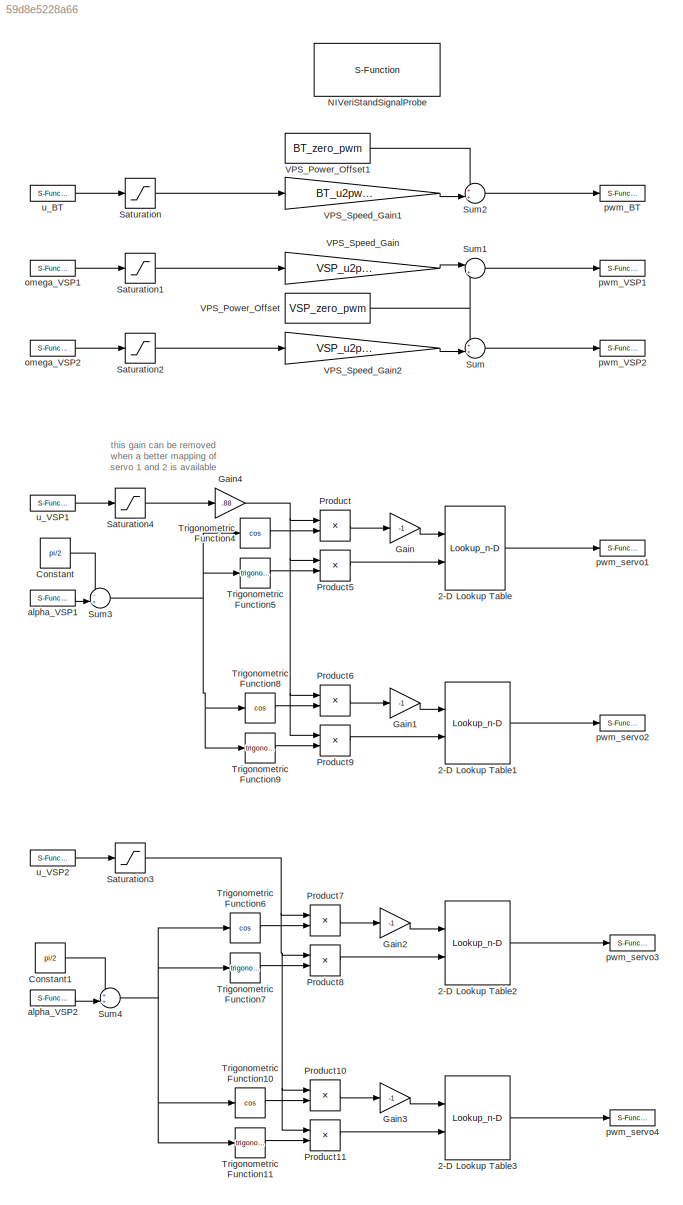
MODEL slx_59d8e5228a66
KIND model
BLOCK [Lookup_n-D] 2-D Lookup Table
  BreakpointsForDimension1 = [-1,-0.7071067811865476,0,0.7071067811865476,1]
  BreakpointsForDimension2 = [-1,-0.7071067811865476,0,0.7071067811865476,1]
  Ports = [2, 1]
  RndMeth = Simplest
  Table = servo_mapping(:,:,1)
BLOCK [Lookup_n-D] 2-D Lookup Table1
  BreakpointsForDimension1 = [-1,-0.7071067811865476,0,0.7071067811865476,1]
  BreakpointsForDimension2 = [-1,-0.7071067811865476,0,0.7071067811865476,1]
  Ports = [2, 1]
  RndMeth = Simplest
  Table = servo_mapping(:,:,2)
BLOCK [Lookup_n-D] 2-D Lookup Table2
  BreakpointsForDimension1 = [-1,-0.7071067811865476,0,0.7071067811865476,1]
  BreakpointsForDimension2 = [-1,-0.7071067811865476,0,0.7071067811865476,1]
  Ports = [2, 1]
  RndMeth = Simplest
  Table = servo_mapping(:,:,3)
BLOCK [Lookup_n-D] 2-D Lookup Table3
  BreakpointsForDimension1 = [-1,-0.7071067811865476,0,0.7071067811865476,1]
  BreakpointsForDimension2 = [-1,-0.7071067811865476,0,0.7071067811865476,1]
  Ports = [2, 1]
  RndMeth = Simplest
  Table = servo_mapping(:,:,4)
BLOCK [Constant] Constant
  Value = pi/2
BLOCK [Constant] Constant1
  Value = pi/2
BLOCK [Gain] Gain
  Gain = -1
  OutDataTypeStr = Inherit: Inherit via internal rule
  ParamDataTypeStr = Inherit: Inherit via internal rule
  SaturateOnIntegerOverflow = off
BLOCK [Gain] Gain1
  Gain = -1
  OutDataTypeStr = Inherit: Inherit via internal rule
  ParamDataTypeStr = Inherit: Inherit via internal rule
  SaturateOnIntegerOverflow = off
BLOCK [Gain] Gain2
  Gain = -1
  OutDataTypeStr = Inherit: Inherit via internal rule
  ParamDataTypeStr = Inherit: Inherit via internal rule
  SaturateOnIntegerOverflow = off
BLOCK [Gain] Gain3
  Gain = -1
  OutDataTypeStr = Inherit: Inherit via internal rule
  ParamDataTypeStr = Inherit: Inherit via internal rule
  SaturateOnIntegerOverflow = off
BLOCK [Gain] Gain4
  Gain = .88
  OutDataTypeStr = Inherit: Inherit via internal rule
  ParamDataTypeStr = Inherit: Inherit via internal rule
  SaturateOnIntegerOverflow = off
BLOCK [S-Function] NIVeriStandSignalProbe
  EnableBusSupport = off
  FunctionName = NIVeriStandSignalProbe
  Parameters = 1
  Ports = []
BLOCK [Product] Product
  InputSameDT = off
  OutDataTypeStr = Inherit: Inherit via internal rule
  Ports = [2, 1]
  RndMeth = Floor
  SaturateOnIntegerOverflow = off
BLOCK [Product] Product10
  InputSameDT = off
  OutDataTypeStr = Inherit: Inherit via internal rule
  Ports = [2, 1]
  RndMeth = Floor
  SaturateOnIntegerOverflow = off
BLOCK [Product] Product11
  InputSameDT = off
  OutDataTypeStr = Inherit: Inherit via internal rule
  Ports = [2, 1]
  RndMeth = Floor
  SaturateOnIntegerOverflow = off
BLOCK [Product] Product5
  InputSameDT = off
  OutDataTypeStr = Inherit: Inherit via internal rule
  Ports = [2, 1]
  RndMeth = Floor
  SaturateOnIntegerOverflow = off
BLOCK [Product] Product6
  InputSameDT = off
  OutDataTypeStr = Inherit: Inherit via internal rule
  Ports = [2, 1]
  RndMeth = Floor
  SaturateOnIntegerOverflow = off
BLOCK [Product] Product7
  InputSameDT = off
  OutDataTypeStr = Inherit: Inherit via internal rule
  Ports = [2, 1]
  RndMeth = Floor
  SaturateOnIntegerOverflow = off
BLOCK [Product] Product8
  InputSameDT = off
  OutDataTypeStr = Inherit: Inherit via internal rule
  Ports = [2, 1]
  RndMeth = Floor
  SaturateOnIntegerOverflow = off
BLOCK [Product] Product9
  InputSameDT = off
  OutDataTypeStr = Inherit: Inherit via internal rule
  Ports = [2, 1]
  RndMeth = Floor
  SaturateOnIntegerOverflow = off
BLOCK [Saturate] Saturation
  InputPortMap = u0
  LowerLimit = -1
  Ports = [1, 1]
  UpperLimit = 1
BLOCK [Saturate] Saturation1
  InputPortMap = u0
  LowerLimit = -1
  Ports = [1, 1]
  UpperLimit = 1
BLOCK [Saturate] Saturation2
  InputPortMap = u0
  LowerLimit = -1
  Ports = [1, 1]
  UpperLimit = 1
BLOCK [Saturate] Saturation3
  InputPortMap = u0
  LowerLimit = -1
  Ports = [1, 1]
  UpperLimit = 1
BLOCK [Saturate] Saturation4
  InputPortMap = u0
  LowerLimit = -1
  Ports = [1, 1]
  UpperLimit = 1
BLOCK [Sum] Sum
  IconShape = round
  InputSameDT = off
  Inputs = ++|
  OutDataTypeStr = Inherit: Inherit via internal rule
  Ports = [2, 1]
  SaturateOnIntegerOverflow = off
BLOCK [Sum] Sum1
  IconShape = round
  InputSameDT = off
  Inputs = |++
  OutDataTypeStr = Inherit: Inherit via internal rule
  Ports = [2, 1]
  SaturateOnIntegerOverflow = off
BLOCK [Sum] Sum2
  IconShape = round
  InputSameDT = off
  Inputs = ++|
  OutDataTypeStr = Inherit: Inherit via internal rule
  Ports = [2, 1]
  SaturateOnIntegerOverflow = off
BLOCK [Sum] Sum3
  IconShape = round
  InputSameDT = off
  Inputs = -+|
  OutDataTypeStr = Inherit: Inherit via internal rule
  Ports = [2, 1]
  SaturateOnIntegerOverflow = off
BLOCK [Sum] Sum4
  IconShape = round
  InputSameDT = off
  Inputs = ++|
  OutDataTypeStr = Inherit: Inherit via internal rule
  Ports = [2, 1]
  SaturateOnIntegerOverflow = off
BLOCK [Trigonometry] Trigonometric Function10
  Operator = cos
  Ports = [1, 1]
BLOCK [Trigonometry] Trigonometric Function11
  Ports = [1, 1]
BLOCK [Trigonometry] Trigonometric Function4
  Operator = cos
  Ports = [1, 1]
BLOCK [Trigonometry] Trigonometric Function5
  Ports = [1, 1]
BLOCK [Trigonometry] Trigonometric Function6
  Operator = cos
  Ports = [1, 1]
BLOCK [Trigonometry] Trigonometric Function7
  Ports = [1, 1]
BLOCK [Trigonometry] Trigonometric Function8
  Operator = cos
  Ports = [1, 1]
BLOCK [Trigonometry] Trigonometric Function9
  Ports = [1, 1]
BLOCK [Constant] VPS_Power_Offset
  Value = VSP_zero_pwm
BLOCK [Constant] VPS_Power_Offset1
  Value = BT_zero_pwm
BLOCK [Gain] VPS_Speed_Gain
  Gain = VSP_u2pwm_gain
  OutDataTypeStr = Inherit: Inherit via internal rule
  ParamDataTypeStr = Inherit: Inherit via internal rule
  SaturateOnIntegerOverflow = off
BLOCK [Gain] VPS_Speed_Gain1
  Gain = BT_u2pwm_gain
  OutDataTypeStr = Inherit: Inherit via internal rule
  ParamDataTypeStr = Inherit: Inherit via internal rule
  SaturateOnIntegerOverflow = off
BLOCK [Gain] VPS_Speed_Gain2
  Gain = VSP_u2pwm_gain
  OutDataTypeStr = Inherit: Inherit via internal rule
  ParamDataTypeStr = Inherit: Inherit via internal rule
  SaturateOnIntegerOverflow = off
BLOCK [S-Function] alpha_VSP1
  CopyFcn = NIVeriStand_MDL_functions('', 'IO_copy');
  DeleteFcn = NIVeriStand_MDL_functions('', 'IO_delete');
  EnableBusSupport = off
  FunctionName = NIVeriStandIO
  MoveFcn = set_param(gcb, 'Mask', 'on');
  Parameters = width dtype portnum stime stype btype
  Ports = [0, 1]
  Priority = 1
BLOCK [S-Function] alpha_VSP2
  CopyFcn = NIVeriStand_MDL_functions('', 'IO_copy');
  DeleteFcn = NIVeriStand_MDL_functions('', 'IO_delete');
  EnableBusSupport = off
  FunctionName = NIVeriStandIO
  MoveFcn = set_param(gcb, 'Mask', 'on');
  Parameters = width dtype portnum stime stype btype
  Ports = [0, 1]
  Priority = 3
BLOCK [S-Function] omega_VSP1
  CopyFcn = NIVeriStand_MDL_functions('', 'IO_copy');
  DeleteFcn = NIVeriStand_MDL_functions('', 'IO_delete');
  EnableBusSupport = off
  FunctionName = NIVeriStandIO
  MoveFcn = set_param(gcb, 'Mask', 'on');
  Parameters = width dtype portnum stime stype btype
  Ports = [0, 1]
  Priority = 6
BLOCK [S-Function] omega_VSP2
  CopyFcn = NIVeriStand_MDL_functions('', 'IO_copy');
  DeleteFcn = NIVeriStand_MDL_functions('', 'IO_delete');
  EnableBusSupport = off
  FunctionName = NIVeriStandIO
  MoveFcn = set_param(gcb, 'Mask', 'on');
  Parameters = width dtype portnum stime stype btype
  Ports = [0, 1]
  Priority = 7
BLOCK [S-Function] pwm_BT
  CopyFcn = NIVeriStand_MDL_functions('', 'IO_copy');
  DeleteFcn = NIVeriStand_MDL_functions('', 'IO_delete');
  EnableBusSupport = off
  FunctionName = NIVeriStandIO
  MoveFcn = set_param(gcb, 'Mask', 'on');
  Parameters = width dtype portnum stime stype btype
  Ports = [1]
  Priority = 3
BLOCK [S-Function] pwm_VSP1
  CopyFcn = NIVeriStand_MDL_functions('', 'IO_copy');
  DeleteFcn = NIVeriStand_MDL_functions('', 'IO_delete');
  EnableBusSupport = off
  FunctionName = NIVeriStandIO
  MoveFcn = set_param(gcb, 'Mask', 'on');
  Parameters = width dtype portnum stime stype btype
  Ports = [1]
  Priority = 1
BLOCK [S-Function] pwm_VSP2
  CopyFcn = NIVeriStand_MDL_functions('', 'IO_copy');
  DeleteFcn = NIVeriStand_MDL_functions('', 'IO_delete');
  EnableBusSupport = off
  FunctionName = NIVeriStandIO
  MoveFcn = set_param(gcb, 'Mask', 'on');
  Parameters = width dtype portnum stime stype btype
  Ports = [1]
  Priority = 2
BLOCK [S-Function] pwm_servo1
  CopyFcn = NIVeriStand_MDL_functions('', 'IO_copy');
  DeleteFcn = NIVeriStand_MDL_functions('', 'IO_delete');
  EnableBusSupport = off
  FunctionName = NIVeriStandIO
  MoveFcn = set_param(gcb, 'Mask', 'on');
  Parameters = width dtype portnum stime stype btype
  Ports = [1]
  Priority = 6
BLOCK [S-Function] pwm_servo2
  CopyFcn = NIVeriStand_MDL_functions('', 'IO_copy');
  DeleteFcn = NIVeriStand_MDL_functions('', 'IO_delete');
  EnableBusSupport = off
  FunctionName = NIVeriStandIO
  MoveFcn = set_param(gcb, 'Mask', 'on');
  Parameters = width dtype portnum stime stype btype
  Ports = [1]
  Priority = 7
BLOCK [S-Function] pwm_servo3
  CopyFcn = NIVeriStand_MDL_functions('', 'IO_copy');
  DeleteFcn = NIVeriStand_MDL_functions('', 'IO_delete');
  EnableBusSupport = off
  FunctionName = NIVeriStandIO
  MoveFcn = set_param(gcb, 'Mask', 'on');
  Parameters = width dtype portnum stime stype btype
  Ports = [1]
  Priority = 5
BLOCK [S-Function] pwm_servo4
  CopyFcn = NIVeriStand_MDL_functions('', 'IO_copy');
  DeleteFcn = NIVeriStand_MDL_functions('', 'IO_delete');
  EnableBusSupport = off
  FunctionName = NIVeriStandIO
  MoveFcn = set_param(gcb, 'Mask', 'on');
  Parameters = width dtype portnum stime stype btype
  Ports = [1]
  Priority = 4
BLOCK [S-Function] u_BT
  CopyFcn = NIVeriStand_MDL_functions('', 'IO_copy');
  DeleteFcn = NIVeriStand_MDL_functions('', 'IO_delete');
  EnableBusSupport = off
  FunctionName = NIVeriStandIO
  MoveFcn = set_param(gcb, 'Mask', 'on');
  Parameters = width dtype portnum stime stype btype
  Ports = [0, 1]
  Priority = 5
BLOCK [S-Function] u_VSP1
  CopyFcn = NIVeriStand_MDL_functions('', 'IO_copy');
  DeleteFcn = NIVeriStand_MDL_functions('', 'IO_delete');
  EnableBusSupport = off
  FunctionName = NIVeriStandIO
  MoveFcn = set_param(gcb, 'Mask', 'on');
  Parameters = width dtype portnum stime stype btype
  Ports = [0, 1]
  Priority = 2
BLOCK [S-Function] u_VSP2
  CopyFcn = NIVeriStand_MDL_functions('', 'IO_copy');
  DeleteFcn = NIVeriStand_MDL_functions('', 'IO_delete');
  EnableBusSupport = off
  FunctionName = NIVeriStandIO
  MoveFcn = set_param(gcb, 'Mask', 'on');
  Parameters = width dtype portnum stime stype btype
  Ports = [0, 1]
  Priority = 4
ANNOTATION (root): this gain can be removed when a better mapping of servo 1 and 2 is available
LINE 2-D Lookup Table1:1 -> pwm_servo2:1
LINE 2-D Lookup Table2:1 -> pwm_servo3:1
LINE 2-D Lookup Table3:1 -> pwm_servo4:1
LINE 2-D Lookup Table:1 -> pwm_servo1:1
LINE Constant1:1 -> Sum4:1
LINE Constant:1 -> Sum3:1
LINE Gain1:1 -> 2-D Lookup Table1:1
LINE Gain2:1 -> 2-D Lookup Table2:1
LINE Gain3:1 -> 2-D Lookup Table3:1
NET Gain4:1 -> Product5:1, Product6:1, Product9:1, Product:1
LINE Gain:1 -> 2-D Lookup Table:1
LINE Product10:1 -> Gain3:1
LINE Product11:1 -> 2-D Lookup Table3:2
LINE Product5:1 -> 2-D Lookup Table:2
LINE Product6:1 -> Gain1:1
LINE Product7:1 -> Gain2:1
LINE Product8:1 -> 2-D Lookup Table2:2
LINE Product9:1 -> 2-D Lookup Table1:2
LINE Product:1 -> Gain:1
LINE Saturation1:1 -> VPS_Speed_Gain:1
LINE Saturation2:1 -> VPS_Speed_Gain2:1
NET Saturation3:1 -> Product10:1, Product11:1, Product7:1, Product8:1
LINE Saturation4:1 -> Gain4:1
LINE Saturation:1 -> VPS_Speed_Gain1:1
LINE Sum1:1 -> pwm_VSP1:1
LINE Sum2:1 -> pwm_BT:1
NET Sum3:1 -> Trigonometric Function4:1, Trigonometric Function5:1, Trigonometric Function8:1, Trigonometric Function9:1
NET Sum4:1 -> Trigonometric Function10:1, Trigonometric Function11:1, Trigonometric Function6:1, Trigonometric Function7:1
LINE Sum:1 -> pwm_VSP2:1
LINE Trigonometric Function10:1 -> Product10:2
LINE Trigonometric Function11:1 -> Product11:2
LINE Trigonometric Function4:1 -> Product:2
LINE Trigonometric Function5:1 -> Product5:2
LINE Trigonometric Function6:1 -> Product7:2
LINE Trigonometric Function7:1 -> Product8:2
LINE Trigonometric Function8:1 -> Product6:2
LINE Trigonometric Function9:1 -> Product9:2
LINE VPS_Power_Offset1:1 -> Sum2:1
NET VPS_Power_Offset:1 -> Sum1:2, Sum:1
LINE VPS_Speed_Gain1:1 -> Sum2:2
LINE VPS_Speed_Gain2:1 -> Sum:2
LINE VPS_Speed_Gain:1 -> Sum1:1
LINE alpha_VSP1:1 -> Sum3:2
LINE alpha_VSP2:1 -> Sum4:2
LINE omega_VSP1:1 -> Saturation1:1
LINE omega_VSP2:1 -> Saturation2:1
LINE u_BT:1 -> Saturation:1
LINE u_VSP1:1 -> Saturation4:1
LINE u_VSP2:1 -> Saturation3:1
note: NET lines group one-source signal fan-out (src -> all destinations, sorted); 1:1 wires keep LINE
